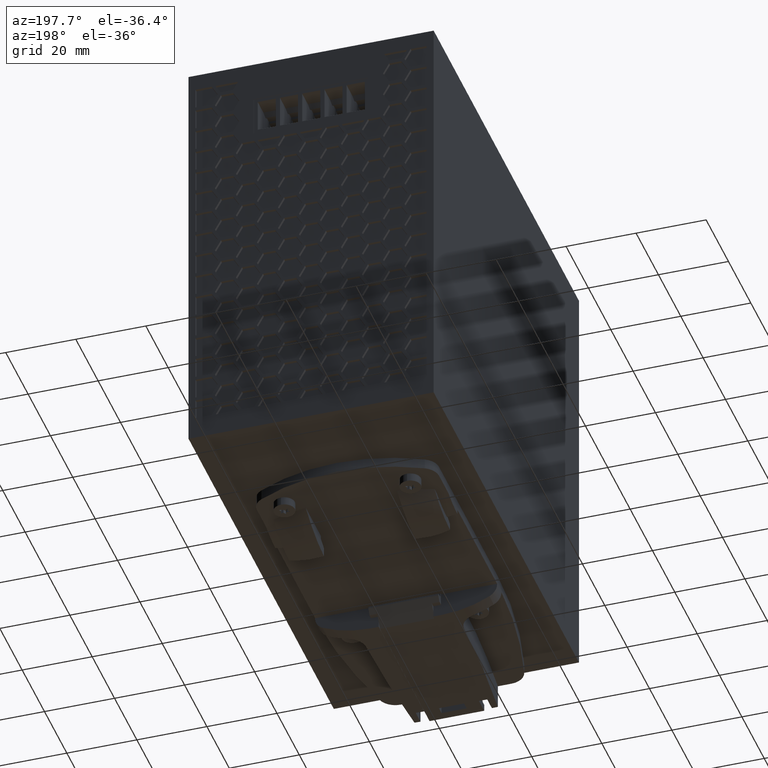
[diagram: clean part render]
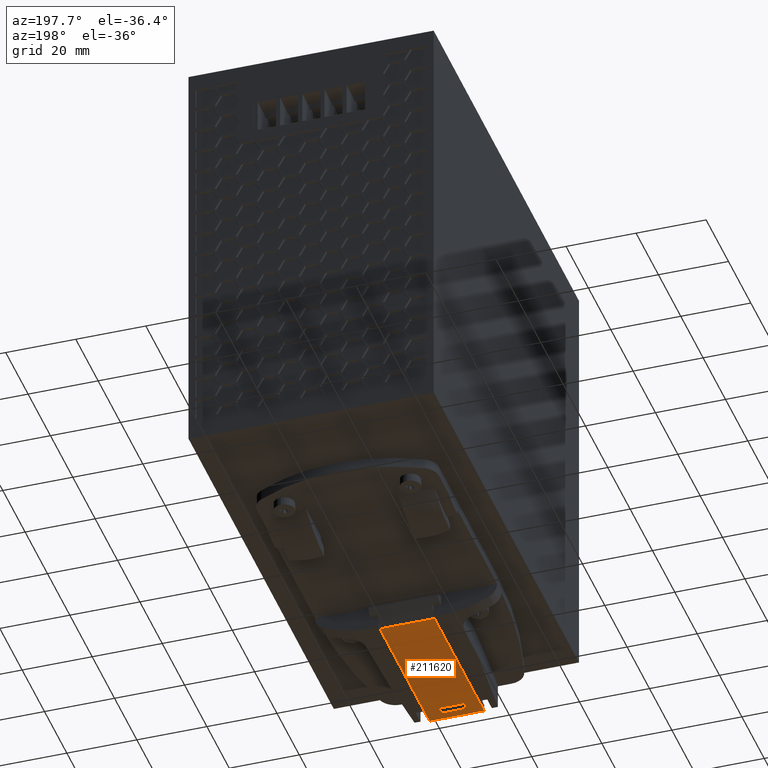
[diagram: same view with one face highlighted and labeled with its STEP entity id]
A machine part, auxiliary view. The second image highlights one B-rep face of the part: STEP entity #211620.
In plain terms, the highlighted planar face has unit normal (0, 0, -1).
Its self-contained STEP definition (entity closure, byte-faithful):
#84530=CARTESIAN_POINT('',(27.2,-9.80000000000832,124.759419167234));
#84540=VERTEX_POINT('',#84530);
#84570=CARTESIAN_POINT('',(27.2,-9.80000000000832,0.));
#84580=DIRECTION('',(0.,0.,1.));
#84590=VECTOR('',#84580,1.);
#84600=LINE('',#84570,#84590);
#84610=CARTESIAN_POINT('',(27.2,-9.80000000000832,85.1992150856017));
#84620=VERTEX_POINT('',#84610);
#84630=EDGE_CURVE('',#84620,#84540,#84600,.T.);
#100390=CARTESIAN_POINT('',(42.8,-9.80000000000832,85.1992150856017));
#100400=VERTEX_POINT('',#100390);
#100430=CARTESIAN_POINT('',(42.8,-9.80000000000832,0.));
#100440=DIRECTION('',(0.,0.,-1.));
#100450=VECTOR('',#100440,1.);
#100460=LINE('',#100430,#100450);
#100470=CARTESIAN_POINT('',(42.8,-9.80000000000832,124.759419167234));
#100480=VERTEX_POINT('',#100470);
#100490=EDGE_CURVE('',#100480,#100400,#100460,.T.);
#105210=CARTESIAN_POINT('',(38.6,-9.80000000000832,124.759419167234));
#105220=VERTEX_POINT('',#105210);
#105300=CARTESIAN_POINT('',(38.6,-9.80000000000832,127.099215085602));
#105310=VERTEX_POINT('',#105300);
#105340=CARTESIAN_POINT('',(38.6000000000027,-9.80000000000832,
-0.347634805199988));
#105350=DIRECTION('',(-2.13162820728E-14,0.,1.));
#105360=VECTOR('',#105350,1.);
#105370=LINE('',#105340,#105360);
#105380=EDGE_CURVE('',#105220,#105310,#105370,.T.);
#106010=CARTESIAN_POINT('',(-1.,-9.80000000000832,85.1992150856017));
#106020=DIRECTION('',(-1.,0.,4.07837029454166E-17));
#106030=VECTOR('',#106020,1.);
#106040=LINE('',#106010,#106030);
#106050=EDGE_CURVE('',#100400,#84620,#106040,.T.);
#209520=CARTESIAN_POINT('',(31.4,-9.80000000000832,127.099215085601));
#209530=VERTEX_POINT('',#209520);
#209560=CARTESIAN_POINT('',(-0.999999999999993,-9.80000000000832,
127.099215085601));
#209570=DIRECTION('',(-1.,0.,-2.13162820728E-14));
#209580=VECTOR('',#209570,1.);
#209590=LINE('',#209560,#209580);
#209600=EDGE_CURVE('',#105310,#209530,#209590,.T.);
#210040=CARTESIAN_POINT('',(27.2,-9.80000000000832,129.599215085601));
#210050=VERTEX_POINT('',#210040);
#210080=CARTESIAN_POINT('',(27.2,-9.80000000000832,0.));
#210090=DIRECTION('',(0.,0.,1.));
#210100=VECTOR('',#210090,1.);
#210110=LINE('',#210080,#210100);
#210120=EDGE_CURVE('',#84540,#210050,#210110,.T.);
#210300=CARTESIAN_POINT('',(42.8,-9.80000000000832,0.));
#210310=DIRECTION('',(0.,0.,-1.));
#210320=VECTOR('',#210310,1.);
#210330=LINE('',#210300,#210320);
#210340=CARTESIAN_POINT('',(42.8,-9.80000000000832,129.599215085601));
#210350=VERTEX_POINT('',#210340);
#210360=EDGE_CURVE('',#210350,#100480,#210330,.T.);
#210680=CARTESIAN_POINT('',(-1.,-9.80000000000832,129.599215085601));
#210690=DIRECTION('',(1.,0.,0.));
#210700=VECTOR('',#210690,1.);
#210710=LINE('',#210680,#210700);
#210720=EDGE_CURVE('',#210050,#210350,#210710,.T.);
#211310=CARTESIAN_POINT('',(31.3,-9.80000000000832,106.524215085601));
#211320=DIRECTION('',(0.,-1.,0.));
#211330=DIRECTION('',(0.,0.,1.));
#211340=AXIS2_PLACEMENT_3D('',#211310,#211320,#211330);
#211350=PLANE('',#211340);
#211360=CARTESIAN_POINT('',(31.4000000000027,-9.80000000000832,
-0.347634805199988));
#211370=DIRECTION('',(-2.13162820728E-14,0.,1.));
#211380=VECTOR('',#211370,1.);
#211390=LINE('',#211360,#211380);
#211400=CARTESIAN_POINT('',(31.4,-9.80000000000832,124.759419167234));
#211410=VERTEX_POINT('',#211400);
#211420=EDGE_CURVE('',#211410,#209530,#211390,.T.);
#211430=ORIENTED_EDGE('',*,*,#211420,.T.);
#211440=CARTESIAN_POINT('',(-0.999999999999993,-9.80000000000832,
124.759419167234));
#211450=DIRECTION('',(1.,0.,0.));
#211460=VECTOR('',#211450,1.);
#211470=LINE('',#211440,#211460);
#211480=EDGE_CURVE('',#211410,#105220,#211470,.T.);
#211490=ORIENTED_EDGE('',*,*,#211480,.F.);
#211500=ORIENTED_EDGE('',*,*,#105380,.F.);
#211510=ORIENTED_EDGE('',*,*,#209600,.F.);
#211520=EDGE_LOOP('',(#211510,#211500,#211490,#211430));
#211530=FACE_BOUND('',#211520,.T.);
#211540=ORIENTED_EDGE('',*,*,#100490,.F.);
#211550=ORIENTED_EDGE('',*,*,#106050,.F.);
#211560=ORIENTED_EDGE('',*,*,#84630,.F.);
#211570=ORIENTED_EDGE('',*,*,#210120,.F.);
#211580=ORIENTED_EDGE('',*,*,#210720,.F.);
#211590=ORIENTED_EDGE('',*,*,#210360,.F.);
#211600=EDGE_LOOP('',(#211590,#211580,#211570,#211560,#211550,#211540));
#211610=FACE_OUTER_BOUND('',#211600,.T.);
#211620=ADVANCED_FACE('',(#211530,#211610),#211350,.T.);